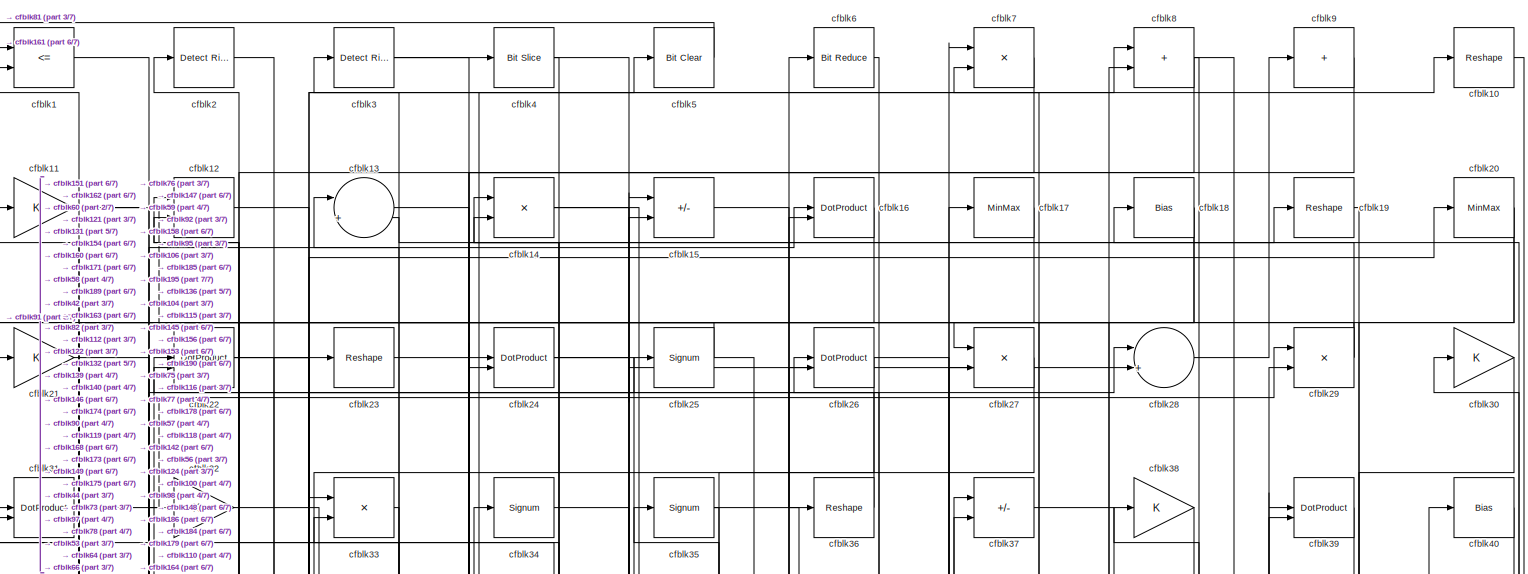
[diagram: root canvas - part 1/7, full width, top band]
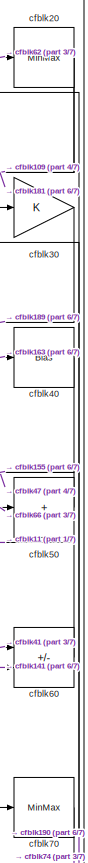
[diagram: root canvas - part 2/7, top right region]
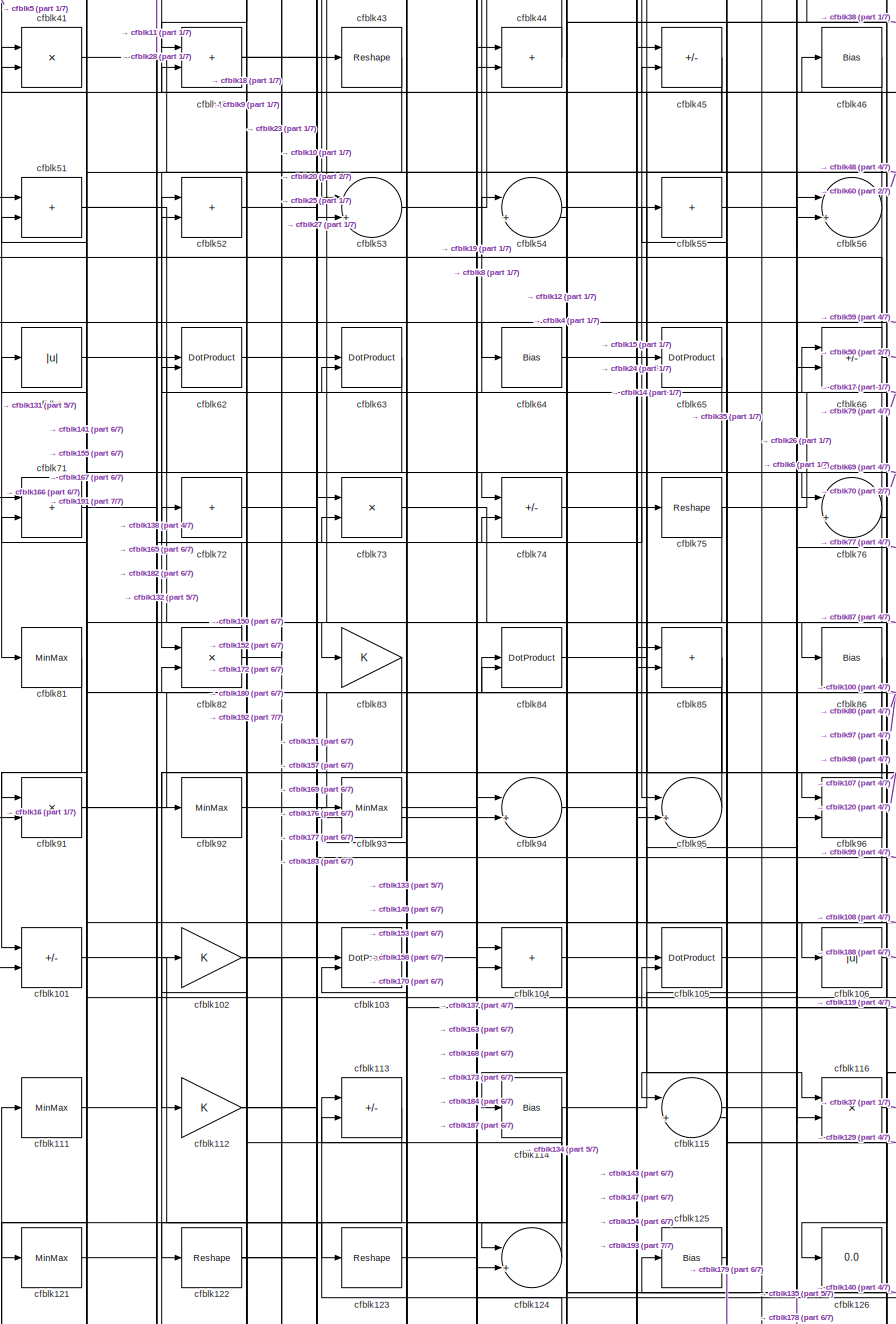
[diagram: root canvas - part 3/7, middle left region]
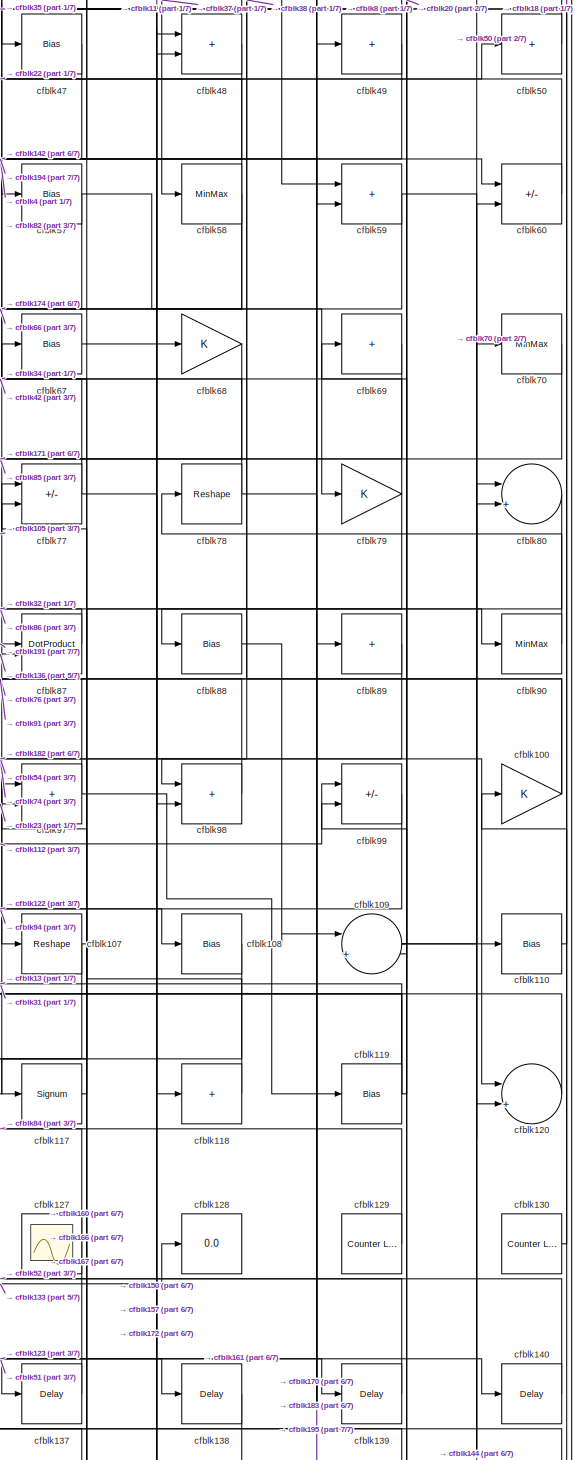
[diagram: root canvas - part 4/7, middle right region]
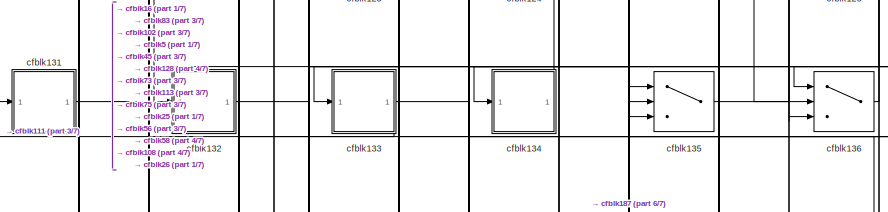
[diagram: root canvas - part 5/7, bottom left region]
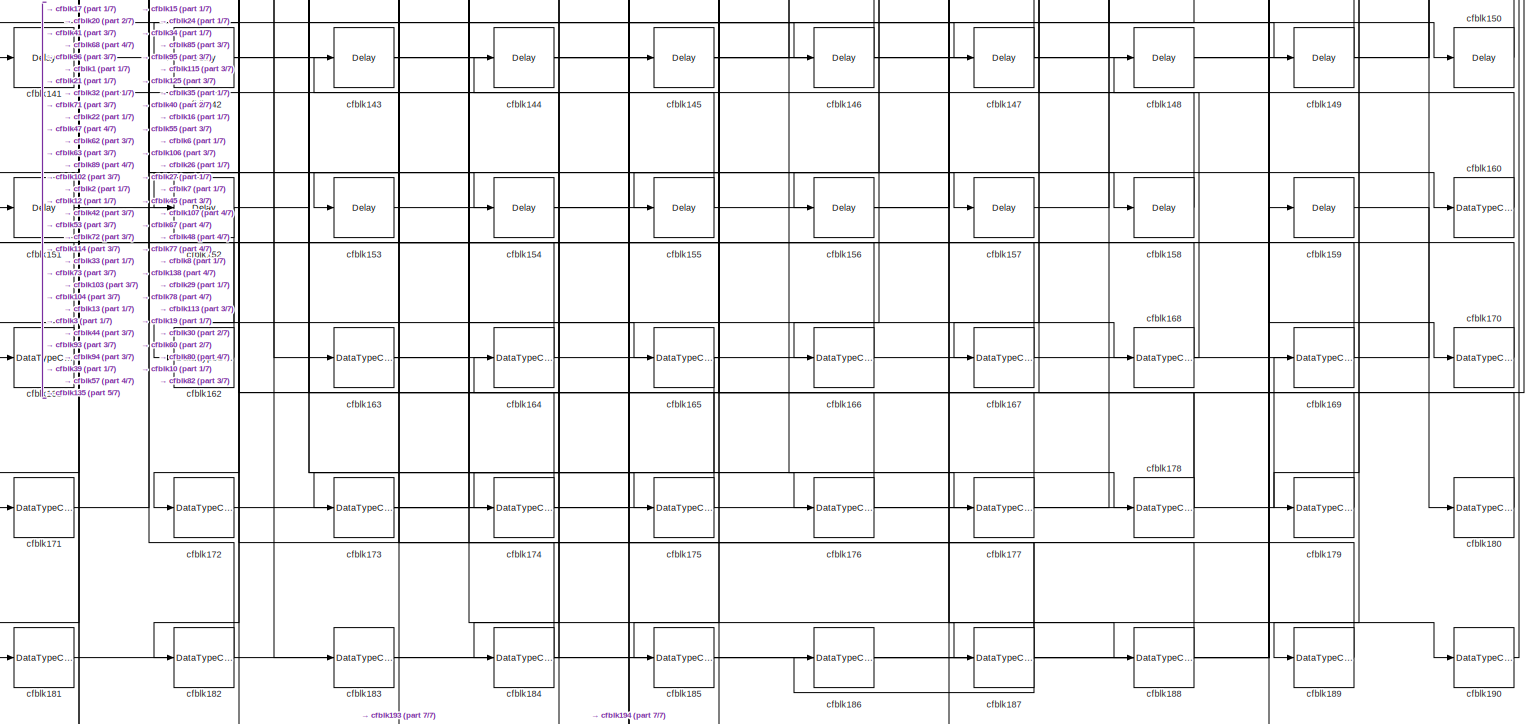
[diagram: root canvas - part 6/7, full width, bottom band]
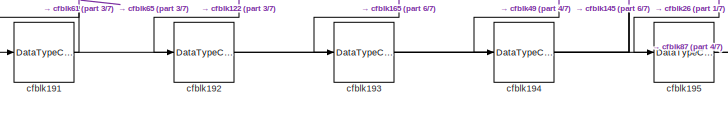
[diagram: root canvas - part 7/7, bottom left region]
MODEL slx_1b96c4b341e5
KIND model
CONFIG AbsTol = auto
CONFIG EnableMultiTasking = off
CONFIG FixedStep = auto
CONFIG MaxStep = auto
CONFIG MinStep = auto
CONFIG RelTol = 1e-3
CONFIG SampleTimeConstraint = Unconstrained
CONFIG SolverName = VariableStepAuto
CONFIG StartTime = 0.0
CONFIG StopTime = 10.0
BLOCK [RelationalOperator] cfblk1
  InputSameDT = off
  Operator = <=
  OutDataTypeStr = boolean
BLOCK [Reshape] cfblk10
BLOCK [Gain] cfblk100
BLOCK [Sum] cfblk101
  IconShape = rectangular
  Inputs = +-
BLOCK [Gain] cfblk102
BLOCK [DotProduct] cfblk103
  OutDataTypeStr = Inherit: Inherit via internal rule
BLOCK [Sum] cfblk104
  IconShape = rectangular
BLOCK [DotProduct] cfblk105
  OutDataTypeStr = Inherit: Inherit via internal rule
BLOCK [Abs] cfblk106
  SaturateOnIntegerOverflow = off
BLOCK [Reshape] cfblk107
BLOCK [Bias] cfblk108
  Bias = 0.0
  SaturateOnIntegerOverflow = off
BLOCK [Sum] cfblk109
  Inputs = |++
BLOCK [Gain] cfblk11
BLOCK [Bias] cfblk110
  Bias = 0.0
  SaturateOnIntegerOverflow = off
BLOCK [MinMax] cfblk111
BLOCK [Gain] cfblk112
BLOCK [Sum] cfblk113
  IconShape = rectangular
  Inputs = +-
BLOCK [Bias] cfblk114
  Bias = 0.0
  SaturateOnIntegerOverflow = off
BLOCK [Sum] cfblk115
  Inputs = |++
BLOCK [Product] cfblk116
  Inputs = */
  RndMeth = Zero
  SaturateOnIntegerOverflow = on
BLOCK [Signum] cfblk117
BLOCK [Sum] cfblk118
  IconShape = rectangular
  Inputs = +
BLOCK [Bias] cfblk119
  Bias = 0.0
  SaturateOnIntegerOverflow = off
BLOCK [Sum] cfblk12
  IconShape = rectangular
BLOCK [Sum] cfblk120
  Inputs = |++
BLOCK [MinMax] cfblk121
BLOCK [Reshape] cfblk122
BLOCK [Reshape] cfblk123
BLOCK [Sum] cfblk124
  Inputs = |++
BLOCK [Bias] cfblk125
  Bias = 0.0
  SaturateOnIntegerOverflow = off
BLOCK [Display] cfblk126
  Decimation = 1
BLOCK [Scope] cfblk127
  Floating = on
  NumInputPorts = 1
  ScopeSpecificationString = Simulink.scopes.TimeScopeBlockCfg('CurrentConfiguration', extmgr.ConfigurationSet(extmgr.Configuration('Core','General UI',true,'FigureColor',[0.156862745098039 0.156862745098039 0.156862745098039]),extmgr.Configuration('Core','Source UI',true),extmgr.Configuration('Sources','WiredSimulink',true,'DataLoggingVariableName','ScopeData1','DataLoggingSaveFormat','StructureWithTime','DataLoggingLimitDat...<+2713ch>
BLOCK [Display] cfblk128
  Decimation = 1
BLOCK [Reference] cfblk129  REF=hdlsllib/Sources/Counter
Limited
  SourceBlock = hdlsllib/Sources/Counter\nLimited
  SourceType = Counter Limited
BLOCK [Sum] cfblk13
  Inputs = |++
BLOCK [Reference] cfblk130  REF=hdlsllib/Sources/Counter
Limited
  SourceBlock = hdlsllib/Sources/Counter\nLimited
  SourceType = Counter Limited
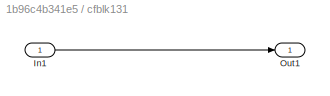
BLOCK [SubSystem] cfblk131
  LibrarySourceBlock = hdlsllib/Ports &\nSubsystems/Subsystem
BLOCK [Inport] cfblk131/In1
BLOCK [Outport] cfblk131/Out1
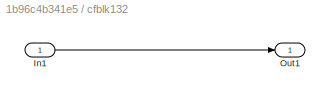
BLOCK [SubSystem] cfblk132
  LibrarySourceBlock = hdlsllib/Ports &\nSubsystems/Subsystem
BLOCK [Inport] cfblk132/In1
BLOCK [Outport] cfblk132/Out1
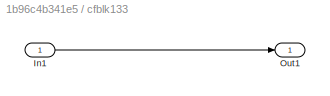
BLOCK [SubSystem] cfblk133
  LibrarySourceBlock = hdlsllib/Ports &\nSubsystems/Subsystem
BLOCK [Inport] cfblk133/In1
BLOCK [Outport] cfblk133/Out1
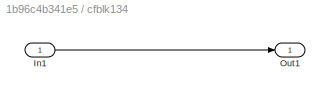
BLOCK [SubSystem] cfblk134
  LibrarySourceBlock = hdlsllib/Ports &\nSubsystems/Subsystem
BLOCK [Inport] cfblk134/In1
BLOCK [Outport] cfblk134/Out1
BLOCK [Switch] cfblk135
  InputSameDT = off
  SaturateOnIntegerOverflow = off
BLOCK [Switch] cfblk136
  InputSameDT = off
  SaturateOnIntegerOverflow = off
BLOCK [Delay] cfblk137
  InputPortMap = u0
  SampleTime = 1
BLOCK [Delay] cfblk138
  InputPortMap = u0
  SampleTime = 1
BLOCK [Delay] cfblk139
  InputPortMap = u0
  SampleTime = 1
BLOCK [Product] cfblk14
  Inputs = */
  RndMeth = Zero
  SaturateOnIntegerOverflow = on
BLOCK [Delay] cfblk140
  InputPortMap = u0
  SampleTime = 1
BLOCK [Delay] cfblk141
  InputPortMap = u0
  SampleTime = 1
BLOCK [Delay] cfblk142
  InputPortMap = u0
  SampleTime = 1
BLOCK [Delay] cfblk143
  InputPortMap = u0
  SampleTime = 1
BLOCK [Delay] cfblk144
  InputPortMap = u0
  SampleTime = 1
BLOCK [Delay] cfblk145
  InputPortMap = u0
  SampleTime = 1
BLOCK [Delay] cfblk146
  InputPortMap = u0
  SampleTime = 1
BLOCK [Delay] cfblk147
  InputPortMap = u0
  SampleTime = 1
BLOCK [Delay] cfblk148
  InputPortMap = u0
  SampleTime = 1
BLOCK [Delay] cfblk149
  InputPortMap = u0
  SampleTime = 1
BLOCK [Sum] cfblk15
  IconShape = rectangular
  Inputs = +-
BLOCK [Delay] cfblk150
  InputPortMap = u0
  SampleTime = 1
BLOCK [Delay] cfblk151
  InputPortMap = u0
  SampleTime = 1
BLOCK [Delay] cfblk152
  InputPortMap = u0
  SampleTime = 1
BLOCK [Delay] cfblk153
  InputPortMap = u0
  SampleTime = 1
BLOCK [Delay] cfblk154
  InputPortMap = u0
  SampleTime = 1
BLOCK [Delay] cfblk155
  InputPortMap = u0
  SampleTime = 1
BLOCK [Delay] cfblk156
  InputPortMap = u0
  SampleTime = 1
BLOCK [Delay] cfblk157
  InputPortMap = u0
  SampleTime = 1
BLOCK [Delay] cfblk158
  InputPortMap = u0
  SampleTime = 1
BLOCK [Delay] cfblk159
  InputPortMap = u0
  SampleTime = 1
BLOCK [DotProduct] cfblk16
  OutDataTypeStr = Inherit: Inherit via internal rule
BLOCK [DataTypeConversion] cfblk160
  OutDataTypeStr = uint8
  RndMeth = Floor
  SaturateOnIntegerOverflow = off
BLOCK [DataTypeConversion] cfblk161
  OutDataTypeStr = uint8
  RndMeth = Floor
  SaturateOnIntegerOverflow = off
BLOCK [DataTypeConversion] cfblk162
  OutDataTypeStr = uint8
  RndMeth = Floor
  SaturateOnIntegerOverflow = off
BLOCK [DataTypeConversion] cfblk163
  RndMeth = Floor
  SaturateOnIntegerOverflow = off
BLOCK [DataTypeConversion] cfblk164
  OutDataTypeStr = uint8
  RndMeth = Floor
  SaturateOnIntegerOverflow = off
BLOCK [DataTypeConversion] cfblk165
  RndMeth = Floor
  SaturateOnIntegerOverflow = off
BLOCK [DataTypeConversion] cfblk166
  OutDataTypeStr = uint8
  RndMeth = Floor
  SaturateOnIntegerOverflow = off
BLOCK [DataTypeConversion] cfblk167
  OutDataTypeStr = uint8
  RndMeth = Floor
  SaturateOnIntegerOverflow = off
BLOCK [DataTypeConversion] cfblk168
  RndMeth = Floor
  SaturateOnIntegerOverflow = off
BLOCK [DataTypeConversion] cfblk169
  OutDataTypeStr = uint8
  RndMeth = Floor
  SaturateOnIntegerOverflow = off
BLOCK [MinMax] cfblk17
BLOCK [DataTypeConversion] cfblk170
  OutDataTypeStr = uint8
  RndMeth = Floor
  SaturateOnIntegerOverflow = off
BLOCK [DataTypeConversion] cfblk171
  OutDataTypeStr = uint8
  RndMeth = Floor
  SaturateOnIntegerOverflow = off
BLOCK [DataTypeConversion] cfblk172
  OutDataTypeStr = uint8
  RndMeth = Floor
  SaturateOnIntegerOverflow = off
BLOCK [DataTypeConversion] cfblk173
  RndMeth = Floor
  SaturateOnIntegerOverflow = off
BLOCK [DataTypeConversion] cfblk174
  OutDataTypeStr = uint8
  RndMeth = Floor
  SaturateOnIntegerOverflow = off
BLOCK [DataTypeConversion] cfblk175
  OutDataTypeStr = uint8
  RndMeth = Floor
  SaturateOnIntegerOverflow = off
BLOCK [DataTypeConversion] cfblk176
  RndMeth = Floor
  SaturateOnIntegerOverflow = off
BLOCK [DataTypeConversion] cfblk177
  OutDataTypeStr = uint8
  RndMeth = Floor
  SaturateOnIntegerOverflow = off
BLOCK [DataTypeConversion] cfblk178
  RndMeth = Floor
  SaturateOnIntegerOverflow = off
BLOCK [DataTypeConversion] cfblk179
  OutDataTypeStr = uint8
  RndMeth = Floor
  SaturateOnIntegerOverflow = off
BLOCK [Bias] cfblk18
  Bias = 0.0
  SaturateOnIntegerOverflow = off
BLOCK [DataTypeConversion] cfblk180
  OutDataTypeStr = uint8
  RndMeth = Floor
  SaturateOnIntegerOverflow = off
BLOCK [DataTypeConversion] cfblk181
  OutDataTypeStr = uint8
  RndMeth = Floor
  SaturateOnIntegerOverflow = off
BLOCK [DataTypeConversion] cfblk182
  OutDataTypeStr = uint8
  RndMeth = Floor
  SaturateOnIntegerOverflow = off
BLOCK [DataTypeConversion] cfblk183
  OutDataTypeStr = uint8
  RndMeth = Floor
  SaturateOnIntegerOverflow = off
BLOCK [DataTypeConversion] cfblk184
  RndMeth = Floor
  SaturateOnIntegerOverflow = off
BLOCK [DataTypeConversion] cfblk185
  OutDataTypeStr = uint8
  RndMeth = Floor
  SaturateOnIntegerOverflow = off
BLOCK [DataTypeConversion] cfblk186
  OutDataTypeStr = uint8
  RndMeth = Floor
  SaturateOnIntegerOverflow = off
BLOCK [DataTypeConversion] cfblk187
  RndMeth = Floor
  SaturateOnIntegerOverflow = off
BLOCK [DataTypeConversion] cfblk188
  OutDataTypeStr = uint8
  RndMeth = Floor
  SaturateOnIntegerOverflow = off
BLOCK [DataTypeConversion] cfblk189
  OutDataTypeStr = uint8
  RndMeth = Floor
  SaturateOnIntegerOverflow = off
BLOCK [Reshape] cfblk19
BLOCK [DataTypeConversion] cfblk190
  OutDataTypeStr = uint8
  RndMeth = Floor
  SaturateOnIntegerOverflow = off
BLOCK [DataTypeConversion] cfblk191
  RndMeth = Floor
  SaturateOnIntegerOverflow = off
BLOCK [DataTypeConversion] cfblk192
  OutDataTypeStr = uint8
  RndMeth = Floor
  SaturateOnIntegerOverflow = off
BLOCK [DataTypeConversion] cfblk193
  OutDataTypeStr = uint8
  RndMeth = Floor
  SaturateOnIntegerOverflow = off
BLOCK [DataTypeConversion] cfblk194
  OutDataTypeStr = uint8
  RndMeth = Floor
  SaturateOnIntegerOverflow = off
BLOCK [DataTypeConversion] cfblk195
  OutDataTypeStr = uint8
  RndMeth = Floor
  SaturateOnIntegerOverflow = off
BLOCK [Reference] cfblk2  REF=hdlsllib/Logic and Bit
Operations/Detect Rise
Positive
  SourceBlock = hdlsllib/Logic and Bit\nOperations/Detect Rise\nPositive
  SourceType = Detect Rise Positive
BLOCK [MinMax] cfblk20
BLOCK [Gain] cfblk21
BLOCK [DotProduct] cfblk22
  OutDataTypeStr = Inherit: Inherit via internal rule
BLOCK [Reshape] cfblk23
BLOCK [DotProduct] cfblk24
  OutDataTypeStr = Inherit: Inherit via internal rule
BLOCK [Signum] cfblk25
BLOCK [DotProduct] cfblk26
  OutDataTypeStr = Inherit: Inherit via internal rule
BLOCK [Product] cfblk27
  Inputs = */
  RndMeth = Zero
  SaturateOnIntegerOverflow = on
BLOCK [Sum] cfblk28
  Inputs = |++
BLOCK [Product] cfblk29
  Inputs = */
  RndMeth = Zero
  SaturateOnIntegerOverflow = on
BLOCK [Reference] cfblk3  REF=hdlsllib/Logic and Bit
Operations/Detect Rise
Nonnegative
  SourceBlock = hdlsllib/Logic and Bit\nOperations/Detect Rise\nNonnegative
  SourceType = Detect Rise Nonnegative
BLOCK [Gain] cfblk30
BLOCK [DotProduct] cfblk31
  OutDataTypeStr = Inherit: Inherit via internal rule
BLOCK [Gain] cfblk32
BLOCK [Product] cfblk33
  Inputs = */
  RndMeth = Zero
  SaturateOnIntegerOverflow = on
BLOCK [Signum] cfblk34
BLOCK [Signum] cfblk35
BLOCK [Reshape] cfblk36
BLOCK [Sum] cfblk37
  IconShape = rectangular
  Inputs = +-
BLOCK [Gain] cfblk38
BLOCK [DotProduct] cfblk39
  OutDataTypeStr = Inherit: Inherit via internal rule
BLOCK [Reference] cfblk4  REF=hdlsllib/Logic and Bit
Operations/Bit Slice
  SourceBlock = hdlsllib/Logic and Bit\nOperations/Bit Slice
  SourceType = Bit Slice
BLOCK [Bias] cfblk40
  Bias = 0.0
  SaturateOnIntegerOverflow = off
BLOCK [Product] cfblk41
  Inputs = */
  RndMeth = Zero
  SaturateOnIntegerOverflow = on
BLOCK [Sum] cfblk42
  IconShape = rectangular
BLOCK [Reshape] cfblk43
BLOCK [Sum] cfblk44
  IconShape = rectangular
BLOCK [Sum] cfblk45
  IconShape = rectangular
  Inputs = +-
BLOCK [Bias] cfblk46
  Bias = 0.0
  SaturateOnIntegerOverflow = off
BLOCK [Bias] cfblk47
  Bias = 0.0
  SaturateOnIntegerOverflow = off
BLOCK [Sum] cfblk48
  IconShape = rectangular
BLOCK [Sum] cfblk49
  IconShape = rectangular
  Inputs = +
BLOCK [Reference] cfblk5  REF=simulink/Logic and Bit
Operations/Bit Clear
  LibrarySourceBlock = hdlsllib/Logic and Bit\nOperations/Bit Clear
  SourceBlock = simulink/Logic and Bit\nOperations/Bit Clear
  SourceType = Bit Clear
BLOCK [Sum] cfblk50
  IconShape = rectangular
  Inputs = +
BLOCK [Sum] cfblk51
  IconShape = rectangular
BLOCK [Sum] cfblk52
  IconShape = rectangular
BLOCK [Sum] cfblk53
  Inputs = |++
BLOCK [Sum] cfblk54
  Inputs = |++
BLOCK [Sum] cfblk55
  IconShape = rectangular
  Inputs = +
BLOCK [Sum] cfblk56
  Inputs = |++
BLOCK [Bias] cfblk57
  Bias = 0.0
  SaturateOnIntegerOverflow = off
BLOCK [MinMax] cfblk58
BLOCK [Sum] cfblk59
  IconShape = rectangular
BLOCK [Reference] cfblk6  REF=hdlsllib/Logic and Bit
Operations/Bit Reduce
  SourceBlock = hdlsllib/Logic and Bit\nOperations/Bit Reduce
  SourceType = Bit Reduce
BLOCK [Sum] cfblk60
  IconShape = rectangular
  Inputs = +-
BLOCK [Abs] cfblk61
  SaturateOnIntegerOverflow = off
BLOCK [DotProduct] cfblk62
  OutDataTypeStr = Inherit: Inherit via internal rule
BLOCK [DotProduct] cfblk63
  OutDataTypeStr = Inherit: Inherit via internal rule
BLOCK [Bias] cfblk64
  Bias = 0.0
  SaturateOnIntegerOverflow = off
BLOCK [DotProduct] cfblk65
  OutDataTypeStr = Inherit: Inherit via internal rule
BLOCK [Sum] cfblk66
  IconShape = rectangular
  Inputs = +-
BLOCK [Bias] cfblk67
  Bias = 0.0
  SaturateOnIntegerOverflow = off
BLOCK [Gain] cfblk68
BLOCK [Sum] cfblk69
  IconShape = rectangular
  Inputs = +
BLOCK [Product] cfblk7
  Inputs = */
  RndMeth = Zero
  SaturateOnIntegerOverflow = on
BLOCK [MinMax] cfblk70
BLOCK [Sum] cfblk71
  IconShape = rectangular
BLOCK [Sum] cfblk72
  IconShape = rectangular
  Inputs = +
BLOCK [Product] cfblk73
  Inputs = */
  RndMeth = Zero
  SaturateOnIntegerOverflow = on
BLOCK [Sum] cfblk74
  IconShape = rectangular
  Inputs = +-
BLOCK [Reshape] cfblk75
BLOCK [Sum] cfblk76
  Inputs = |++
BLOCK [Sum] cfblk77
  IconShape = rectangular
  Inputs = +-
BLOCK [Reshape] cfblk78
BLOCK [Gain] cfblk79
BLOCK [Sum] cfblk8
  IconShape = rectangular
BLOCK [Sum] cfblk80
  Inputs = |++
BLOCK [MinMax] cfblk81
BLOCK [Product] cfblk82
  Inputs = */
  RndMeth = Zero
  SaturateOnIntegerOverflow = on
BLOCK [Gain] cfblk83
BLOCK [DotProduct] cfblk84
  OutDataTypeStr = Inherit: Inherit via internal rule
BLOCK [Sum] cfblk85
  IconShape = rectangular
BLOCK [Bias] cfblk86
  Bias = 0.0
  SaturateOnIntegerOverflow = off
BLOCK [DotProduct] cfblk87
  OutDataTypeStr = Inherit: Inherit via internal rule
BLOCK [Bias] cfblk88
  Bias = 0.0
  SaturateOnIntegerOverflow = off
BLOCK [Sum] cfblk89
  IconShape = rectangular
  Inputs = +
BLOCK [Sum] cfblk9
  IconShape = rectangular
  Inputs = +
BLOCK [MinMax] cfblk90
BLOCK [Product] cfblk91
  Inputs = */
  RndMeth = Zero
  SaturateOnIntegerOverflow = on
BLOCK [MinMax] cfblk92
BLOCK [MinMax] cfblk93
BLOCK [Sum] cfblk94
  Inputs = |++
BLOCK [Sum] cfblk95
  Inputs = |++
BLOCK [Sum] cfblk96
  IconShape = rectangular
BLOCK [Sum] cfblk97
  IconShape = rectangular
BLOCK [Sum] cfblk98
  IconShape = rectangular
BLOCK [Sum] cfblk99
  IconShape = rectangular
  Inputs = +-
NET cfblk100:1 -> cfblk38:1, cfblk74:2
LINE cfblk101:1 -> cfblk123:1
NET cfblk102:1 -> cfblk135:2, cfblk177:1, cfblk183:1
LINE cfblk103:1 -> cfblk168:1
LINE cfblk104:1 -> cfblk26:2
LINE cfblk105:1 -> cfblk77:1
LINE cfblk106:1 -> cfblk188:1
NET cfblk107:1 -> cfblk166:1, cfblk167:1
LINE cfblk108:1 -> cfblk136:1
NET cfblk109:1 -> cfblk120:2, cfblk69:1, cfblk70:1
LINE cfblk10:1 -> cfblk164:1
LINE cfblk110:1 -> cfblk18:1
LINE cfblk111:1 -> cfblk75:1
NET cfblk112:1 -> cfblk25:1, cfblk99:1
LINE cfblk113:1 -> cfblk131:1
NET cfblk114:1 -> cfblk152:1, cfblk153:1, cfblk96:2
LINE cfblk115:1 -> cfblk6:1
LINE cfblk116:1 -> cfblk37:1
LINE cfblk117:1 -> cfblk77:2
LINE cfblk118:1 -> cfblk97:1
NET cfblk119:1 -> cfblk13:1, cfblk31:2, cfblk54:2, cfblk99:2
NET cfblk11:1 -> cfblk118:1, cfblk56:2
LINE cfblk120:1 -> cfblk105:2
LINE cfblk121:1 -> cfblk28:1
NET cfblk122:1 -> cfblk10:1, cfblk192:1, cfblk84:2
LINE cfblk123:1 -> cfblk137:1
LINE cfblk124:1 -> cfblk102:1
LINE cfblk125:1 -> cfblk45:2
LINE cfblk129:1 -> cfblk84:1
LINE cfblk12:1 -> cfblk146:1
LINE cfblk130:1 -> cfblk100:1
LINE cfblk131/In1:1 -> cfblk131/Out1:1
LINE cfblk131:1 -> cfblk16:1
LINE cfblk132/In1:1 -> cfblk132/Out1:1
LINE cfblk132:1 -> cfblk5:1
LINE cfblk133/In1:1 -> cfblk133/Out1:1
NET cfblk133:1 -> cfblk111:1, cfblk128:1
LINE cfblk134/In1:1 -> cfblk134/Out1:1
LINE cfblk134:1 -> cfblk113:1
LINE cfblk135:1 -> cfblk56:1
LINE cfblk136:1 -> cfblk26:1
LINE cfblk137:1 -> cfblk51:1
LINE cfblk138:1 -> cfblk161:1
LINE cfblk139:1 -> cfblk31:1
LINE cfblk13:1 -> cfblk149:1
LINE cfblk140:1 -> cfblk52:2
LINE cfblk141:1 -> cfblk60:2
LINE cfblk142:1 -> cfblk8:2
LINE cfblk143:1 -> cfblk95:2
LINE cfblk144:1 -> cfblk80:2
LINE cfblk145:1 -> cfblk16:2
LINE cfblk146:1 -> cfblk24:1
LINE cfblk147:1 -> cfblk45:1
LINE cfblk148:1 -> cfblk29:2
LINE cfblk149:1 -> cfblk113:2
NET cfblk14:1 -> cfblk106:1, cfblk28:2
LINE cfblk150:1 -> cfblk82:2
LINE cfblk151:1 -> cfblk53:2
LINE cfblk152:1 -> cfblk162:1
LINE cfblk153:1 -> cfblk27:2
LINE cfblk154:1 -> cfblk85:1
LINE cfblk155:1 -> cfblk41:2
LINE cfblk156:1 -> cfblk7:1
LINE cfblk157:1 -> cfblk48:1
LINE cfblk158:1 -> cfblk73:2
LINE cfblk159:1 -> cfblk180:1
LINE cfblk15:1 -> cfblk36:1
LINE cfblk160:1 -> cfblk67:1
LINE cfblk161:1 -> cfblk1:1
LINE cfblk162:1 -> cfblk1:2
NET cfblk163:1 -> cfblk40:1, cfblk44:1
LINE cfblk164:1 -> cfblk2:1
NET cfblk165:1 -> cfblk125:1, cfblk193:1
LINE cfblk166:1 -> cfblk71:1
LINE cfblk167:1 -> cfblk71:2
NET cfblk168:1 -> cfblk13:2, cfblk148:1
LINE cfblk169:1 -> cfblk103:1
LINE cfblk16:1 -> cfblk91:2
LINE cfblk170:1 -> cfblk103:2
LINE cfblk171:1 -> cfblk32:1
LINE cfblk172:1 -> cfblk68:1
NET cfblk173:1 -> cfblk15:2, cfblk94:1
LINE cfblk174:1 -> cfblk33:1
LINE cfblk175:1 -> cfblk33:2
NET cfblk176:1 -> cfblk169:1, cfblk63:1
LINE cfblk177:1 -> cfblk72:1
NET cfblk178:1 -> cfblk115:2, cfblk7:2
LINE cfblk179:1 -> cfblk55:1
LINE cfblk17:1 -> cfblk151:1
LINE cfblk180:1 -> cfblk62:2
LINE cfblk181:1 -> cfblk159:1
LINE cfblk182:1 -> cfblk62:1
LINE cfblk183:1 -> cfblk89:1
NET cfblk184:1 -> cfblk104:1, cfblk144:1
LINE cfblk185:1 -> cfblk39:1
LINE cfblk186:1 -> cfblk39:2
NET cfblk187:1 -> cfblk135:1, cfblk143:1, cfblk186:1
LINE cfblk188:1 -> cfblk93:1
LINE cfblk189:1 -> cfblk22:2
NET cfblk18:1 -> cfblk42:1, cfblk57:1
LINE cfblk190:1 -> cfblk30:1
NET cfblk191:1 -> cfblk61:1, cfblk87:1
LINE cfblk192:1 -> cfblk65:1
LINE cfblk193:1 -> cfblk65:2
LINE cfblk194:1 -> cfblk145:1
LINE cfblk195:1 -> cfblk49:1
LINE cfblk19:1 -> cfblk179:1
LINE cfblk1:1 -> cfblk160:1
NET cfblk20:1 -> cfblk109:2, cfblk181:1
LINE cfblk21:1 -> cfblk154:1
NET cfblk22:1 -> cfblk139:1, cfblk140:1
LINE cfblk23:1 -> cfblk97:2
NET cfblk24:1 -> cfblk158:1, cfblk95:1
NET cfblk25:1 -> cfblk136:2, cfblk21:1
NET cfblk26:1 -> cfblk190:1, cfblk195:1
LINE cfblk27:1 -> cfblk53:1
LINE cfblk28:1 -> cfblk9:1
NET cfblk29:1 -> cfblk27:1, cfblk3:1
LINE cfblk2:1 -> cfblk163:1
LINE cfblk30:1 -> cfblk189:1
LINE cfblk31:1 -> cfblk29:1
LINE cfblk32:1 -> cfblk90:1
LINE cfblk33:1 -> cfblk173:1
LINE cfblk34:1 -> cfblk147:1
NET cfblk35:1 -> cfblk185:1, cfblk98:2
LINE cfblk36:1 -> cfblk12:1
LINE cfblk37:1 -> cfblk58:1
LINE cfblk38:1 -> cfblk124:1
LINE cfblk39:1 -> cfblk184:1
NET cfblk3:1 -> cfblk175:1, cfblk4:1
LINE cfblk40:1 -> cfblk155:1
LINE cfblk41:1 -> cfblk60:1
NET cfblk42:1 -> cfblk157:1, cfblk76:1, cfblk94:2
LINE cfblk43:1 -> cfblk121:1
LINE cfblk44:1 -> cfblk12:2
NET cfblk45:1 -> cfblk114:1, cfblk133:1
LINE cfblk46:1 -> cfblk115:1
LINE cfblk47:1 -> cfblk142:1
LINE cfblk48:1 -> cfblk82:1
LINE cfblk49:1 -> cfblk194:1
NET cfblk4:1 -> cfblk59:2, cfblk64:1
LINE cfblk50:1 -> cfblk47:1
NET cfblk51:1 -> cfblk138:1, cfblk83:1
LINE cfblk52:1 -> cfblk73:1
LINE cfblk53:1 -> cfblk8:1
LINE cfblk54:1 -> cfblk120:1
LINE cfblk55:1 -> cfblk178:1
NET cfblk56:1 -> cfblk101:2, cfblk35:1
NET cfblk57:1 -> cfblk174:1, cfblk79:1
NET cfblk58:1 -> cfblk136:3, cfblk22:1, cfblk87:2
NET cfblk59:1 -> cfblk110:1, cfblk66:2
LINE cfblk5:1 -> cfblk81:1
LINE cfblk60:1 -> cfblk11:1
LINE cfblk61:1 -> cfblk105:1
NET cfblk62:1 -> cfblk20:1, cfblk43:1
LINE cfblk63:1 -> cfblk172:1
LINE cfblk64:1 -> cfblk116:1
LINE cfblk65:1 -> cfblk191:1
NET cfblk66:1 -> cfblk126:1, cfblk14:1, cfblk50:1
LINE cfblk67:1 -> cfblk48:2
LINE cfblk68:1 -> cfblk171:1
LINE cfblk69:1 -> cfblk85:2
LINE cfblk6:1 -> cfblk156:1
LINE cfblk70:1 -> cfblk74:1
LINE cfblk71:1 -> cfblk165:1
LINE cfblk72:1 -> cfblk176:1
NET cfblk73:1 -> cfblk116:2, cfblk124:2, cfblk135:3, cfblk19:1
LINE cfblk74:1 -> cfblk107:1
NET cfblk75:1 -> cfblk134:1, cfblk17:1
NET cfblk76:1 -> cfblk14:2, cfblk91:1
NET cfblk77:1 -> cfblk150:1, cfblk37:2
NET cfblk78:1 -> cfblk170:1, cfblk34:1
NET cfblk79:1 -> cfblk42:2, cfblk88:1
LINE cfblk7:1 -> cfblk24:2
LINE cfblk80:1 -> cfblk117:1
LINE cfblk81:1 -> cfblk101:1
NET cfblk82:1 -> cfblk23:1, cfblk52:1
LINE cfblk83:1 -> cfblk132:1
LINE cfblk84:1 -> cfblk46:1
NET cfblk85:1 -> cfblk104:2, cfblk112:1
LINE cfblk86:1 -> cfblk96:1
LINE cfblk87:1 -> cfblk86:1
LINE cfblk88:1 -> cfblk109:1
LINE cfblk89:1 -> cfblk182:1
NET cfblk8:1 -> cfblk44:2, cfblk59:1, cfblk98:1
LINE cfblk90:1 -> cfblk78:1
NET cfblk91:1 -> cfblk54:1, cfblk80:1
LINE cfblk92:1 -> cfblk15:1
LINE cfblk93:1 -> cfblk187:1
LINE cfblk94:1 -> cfblk108:1
LINE cfblk95:1 -> cfblk41:1
NET cfblk96:1 -> cfblk141:1, cfblk63:2, cfblk66:1
NET cfblk97:1 -> cfblk119:1, cfblk76:2
LINE cfblk98:1 -> cfblk51:2
LINE cfblk99:1 -> cfblk122:1
LINE cfblk9:1 -> cfblk92:1
note: NET lines group one-source signal fan-out (src -> all destinations, sorted); 1:1 wires keep LINE
